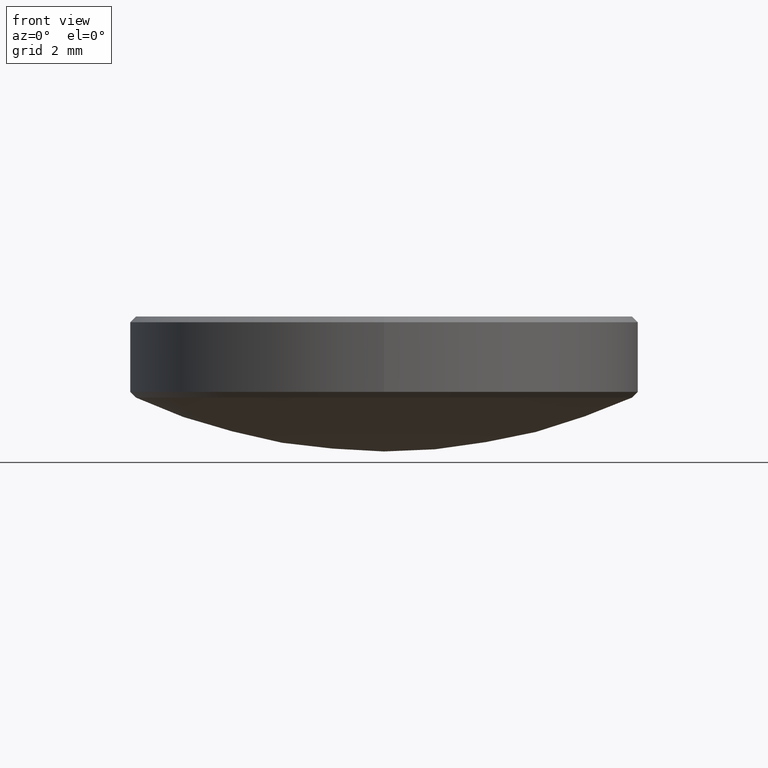
[diagram: clean part render]
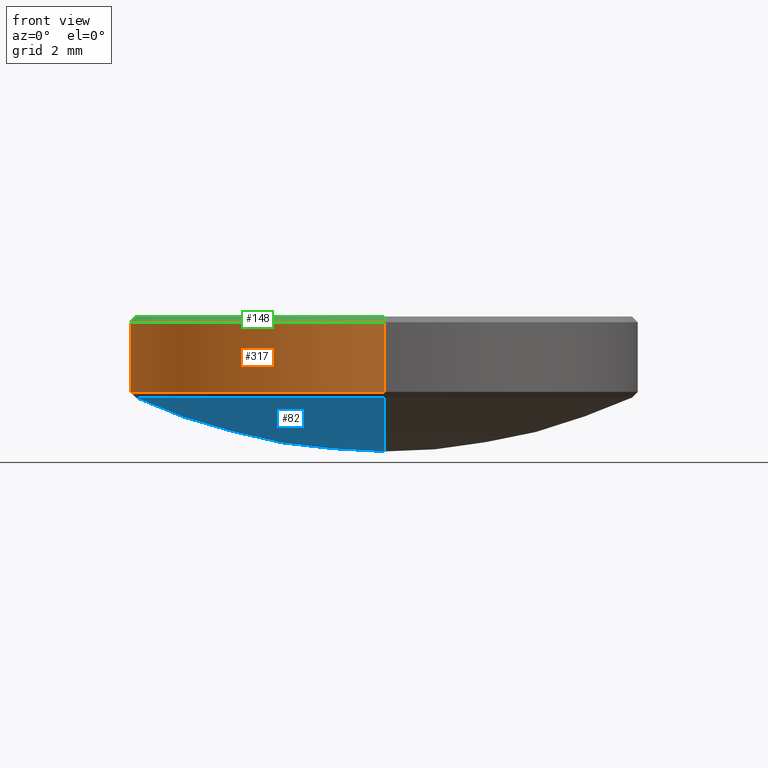
[diagram: same view with three faces highlighted in distinct colors, each labeled with its STEP entity id]
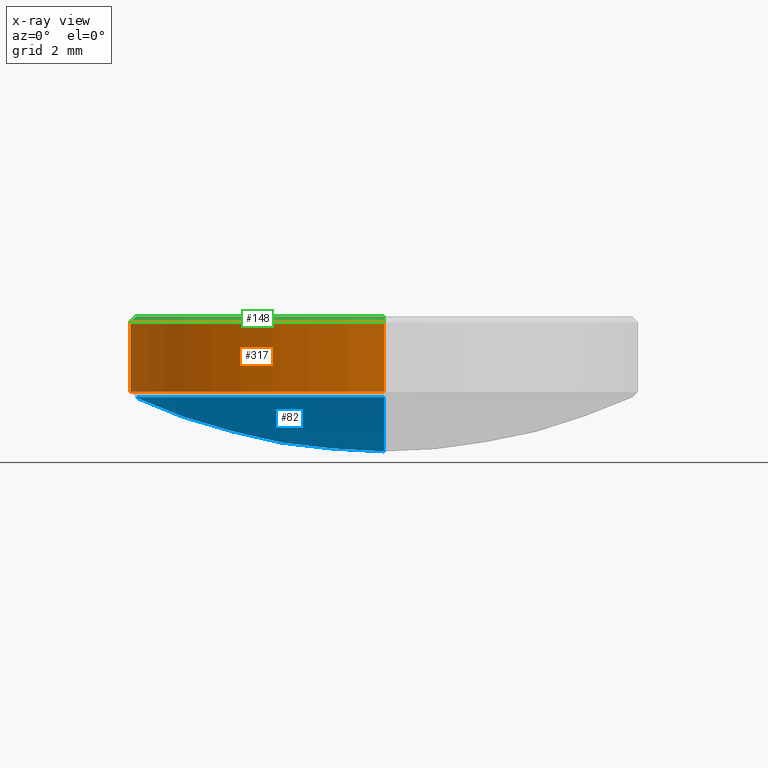
[diagram: x-ray of the same camera — body ghosted, the three highlighted faces saturated]
A machine part, front view with three faces highlighted in distinct colors.
The next image is the same camera in x-ray (body ghosted, the three faces saturated) — at least one of them is partly hidden behind the body in this view.
Their STEP definitions:

[orange] entity #317 — the highlighted cylindrical surface (partial cylindrical patch) has radius 6.35 mm, axis along (-0, -0, 1).
#3 = EDGE_CURVE ( 'NONE', #327, #126, #259, .T. ) ;
#5 = CARTESIAN_POINT ( 'NONE',  ( 0.0000000000000000000, 0.0000000000000000000, 0.05150915296063259000 ) ) ;
#31 = AXIS2_PLACEMENT_3D ( 'NONE', #309, #178, #176 ) ;
#48 = CARTESIAN_POINT ( 'NONE',  ( 3.061616997868383000E-017, 0.2500000000000000000, 0.05150915296063263100 ) ) ;
#60 = DIRECTION ( 'NONE',  ( 0.0000000000000000000, -1.000000000000000000, -1.707404996040164500E-016 ) ) ;
#62 = ORIENTED_EDGE ( 'NONE', *, *, #320, .F. ) ;
#63 = DIRECTION ( 'NONE',  ( -0.0000000000000000000, -1.836909530733566100E-016, 1.000000000000000000 ) ) ;
#87 = VECTOR ( 'NONE', #106, 39.37007874015748100 ) ;
#102 = DIRECTION ( 'NONE',  ( 0.0000000000000000000, -1.000000000000000000, -1.707404996040164500E-016 ) ) ;
#106 = DIRECTION ( 'NONE',  ( -0.0000000000000000000, -1.836909530733566100E-016, 1.000000000000000000 ) ) ;
#123 = EDGE_CURVE ( 'NONE', #327, #325, #152, .T. ) ;
#126 = VERTEX_POINT ( 'NONE', #229 ) ;
#131 = DIRECTION ( 'NONE',  ( -0.0000000000000000000, -1.836909530733566100E-016, 1.000000000000000000 ) ) ;
#133 = CARTESIAN_POINT ( 'NONE',  ( 0.0000000000000000000, -0.2500000000000000000, -0.008072666374097724200 ) ) ;
#145 = LINE ( 'NONE', #199, #87 ) ;
#149 = ORIENTED_EDGE ( 'NONE', *, *, #3, .F. ) ;
#152 = CIRCLE ( 'NONE', #31, 0.2500000000000000000 ) ;
#176 = DIRECTION ( 'NONE',  ( 0.0000000000000000000, -1.000000000000000000, -1.835460370743176800E-016 ) ) ;
#178 = DIRECTION ( 'NONE',  ( -0.0000000000000000000, -1.836909530733566100E-016, 1.000000000000000000 ) ) ;
#188 = CARTESIAN_POINT ( 'NONE',  ( 0.0000000000000000000, -1.626968277904726200E-018, 0.06036624826491248500 ) ) ;
#189 = EDGE_LOOP ( 'NONE', ( #149, #284, #228, #62 ) ) ;
#192 = AXIS2_PLACEMENT_3D ( 'NONE', #188, #272, #60 ) ;
#199 = CARTESIAN_POINT ( 'NONE',  ( 0.0000000000000000000, -0.2500000000000000000, 0.05150915296063254800 ) ) ;
#214 = AXIS2_PLACEMENT_3D ( 'NONE', #5, #131, #102 ) ;
#228 = ORIENTED_EDGE ( 'NONE', *, *, #246, .T. ) ;
#229 = CARTESIAN_POINT ( 'NONE',  ( 3.061616997868383000E-017, 0.2500000000000000000, 0.06036624826491252700 ) ) ;
#240 = CARTESIAN_POINT ( 'NONE',  ( 0.0000000000000000000, -0.2500000000000000000, 0.06036624826491244300 ) ) ;
#246 = EDGE_CURVE ( 'NONE', #325, #270, #145, .T. ) ;
#259 = LINE ( 'NONE', #48, #300 ) ;
#270 = VERTEX_POINT ( 'NONE', #240 ) ;
#272 = DIRECTION ( 'NONE',  ( -0.0000000000000000000, -1.836909530733566100E-016, 1.000000000000000000 ) ) ;
#273 = CIRCLE ( 'NONE', #192, 0.2500000000000000000 ) ;
#284 = ORIENTED_EDGE ( 'NONE', *, *, #123, .T. ) ;
#290 = CYLINDRICAL_SURFACE ( 'NONE', #214, 0.2500000000000000000 ) ;
#298 = CARTESIAN_POINT ( 'NONE',  ( 3.061616997868382400E-017, 0.2500000000000000000, -0.008072666374097632300 ) ) ;
#300 = VECTOR ( 'NONE', #63, 39.37007874015748100 ) ;
#303 = FACE_OUTER_BOUND ( 'NONE', #189, .T. ) ;
#309 = CARTESIAN_POINT ( 'NONE',  ( 0.0000000000000000000, 1.094464117944115000E-017, -0.008072666374097677400 ) ) ;
#317 = ADVANCED_FACE ( 'NONE', ( #303 ), #290, .T. ) ;
#320 = EDGE_CURVE ( 'NONE', #126, #270, #273, .T. ) ;
#325 = VERTEX_POINT ( 'NONE', #133 ) ;
#327 = VERTEX_POINT ( 'NONE', #298 ) ;

[blue] entity #82 — the highlighted spherical surface has radius 15 mm.
#2 = CARTESIAN_POINT ( 'NONE',  ( 0.0000000000000000000, -0.2444322300693973200, -0.01364043630470037100 ) ) ;
#17 = VERTEX_POINT ( 'NONE', #20 ) ;
#20 = CARTESIAN_POINT ( 'NONE',  ( 2.993431481629367800E-017, 0.2444322300693973800, -0.01364043630470025500 ) ) ;
#34 = EDGE_LOOP ( 'NONE', ( #66, #254, #173 ) ) ;
#37 = EDGE_CURVE ( 'NONE', #17, #217, #183, .T. ) ;
#52 = FACE_OUTER_BOUND ( 'NONE', #34, .T. ) ;
#66 = ORIENTED_EDGE ( 'NONE', *, *, #72, .F. ) ;
#72 = EDGE_CURVE ( 'NONE', #208, #17, #155, .T. ) ;
#82 = ADVANCED_FACE ( 'NONE', ( #52 ), #144, .T. ) ;
#90 = DIRECTION ( 'NONE',  ( 1.224646799147353200E-016, 1.000000000000000000, 0.0000000000000000000 ) ) ;
#104 = DIRECTION ( 'NONE',  ( 1.000000000000000000, 0.0000000000000000000, 0.0000000000000000000 ) ) ;
#135 = AXIS2_PLACEMENT_3D ( 'NONE', #262, #288, #256 ) ;
#144 = SPHERICAL_SURFACE ( 'NONE', #330, 0.5905511811023621500 ) ;
#155 = CIRCLE ( 'NONE', #296, 0.5905511811023621500 ) ;
#173 = ORIENTED_EDGE ( 'NONE', *, *, #37, .F. ) ;
#174 = DIRECTION ( 'NONE',  ( 1.000000000000000000, -1.224646799147353200E-016, -2.249565377136128300E-032 ) ) ;
#183 = CIRCLE ( 'NONE', #257, 0.2444322300693973200 ) ;
#208 = VERTEX_POINT ( 'NONE', #310 ) ;
#216 = DIRECTION ( 'NONE',  ( -0.0000000000000000000, -1.836909530733566100E-016, 1.000000000000000000 ) ) ;
#217 = VERTEX_POINT ( 'NONE', #2 ) ;
#254 = ORIENTED_EDGE ( 'NONE', *, *, #283, .T. ) ;
#255 = CARTESIAN_POINT ( 'NONE',  ( 0.0000000000000000000, 0.0000000000000000000, 0.5239500978425223300 ) ) ;
#256 = DIRECTION ( 'NONE',  ( 0.0000000000000000000, 0.0000000000000000000, 1.000000000000000000 ) ) ;
#257 = AXIS2_PLACEMENT_3D ( 'NONE', #324, #216, #264 ) ;
#262 = CARTESIAN_POINT ( 'NONE',  ( 0.0000000000000000000, 0.0000000000000000000, 0.5239500978425223300 ) ) ;
#264 = DIRECTION ( 'NONE',  ( 0.0000000000000000000, -1.000000000000000000, -1.833611759518356000E-016 ) ) ;
#280 = DIRECTION ( 'NONE',  ( 0.0000000000000000000, -1.000000000000000000, -2.312964634635743000E-016 ) ) ;
#283 = EDGE_CURVE ( 'NONE', #208, #217, #313, .T. ) ;
#288 = DIRECTION ( 'NONE',  ( -1.000000000000000000, 0.0000000000000000000, -0.0000000000000000000 ) ) ;
#296 = AXIS2_PLACEMENT_3D ( 'NONE', #318, #174, #90 ) ;
#310 = CARTESIAN_POINT ( 'NONE',  ( 0.0000000000000000000, 7.231807861180451000E-017, -0.06660108325983987700 ) ) ;
#313 = CIRCLE ( 'NONE', #135, 0.5905511811023621500 ) ;
#318 = CARTESIAN_POINT ( 'NONE',  ( 0.0000000000000000000, 0.0000000000000000000, 0.5239500978425223300 ) ) ;
#324 = CARTESIAN_POINT ( 'NONE',  ( 0.0000000000000000000, 1.196739014448673000E-017, -0.01364043630470035400 ) ) ;
#330 = AXIS2_PLACEMENT_3D ( 'NONE', #255, #104, #280 ) ;

[green] entity #148 — the highlighted conical surface has half-angle 45 deg.
#11 = CARTESIAN_POINT ( 'NONE',  ( 3.061616997868383000E-017, -0.2500000000000000000, 0.06036624826491244300 ) ) ;
#13 = DIRECTION ( 'NONE',  ( 8.659560562354985900E-017, -0.7071067811865516800, -0.7071067811865431300 ) ) ;
#38 = CARTESIAN_POINT ( 'NONE',  ( 0.0000000000000000000, 0.2500000000000000000, 0.06036624826491252700 ) ) ;
#47 = AXIS2_PLACEMENT_3D ( 'NONE', #305, #168, #221 ) ;
#53 = EDGE_CURVE ( 'NONE', #212, #71, #306, .T. ) ;
#60 = DIRECTION ( 'NONE',  ( 0.0000000000000000000, -1.000000000000000000, -1.707404996040164500E-016 ) ) ;
#68 = ORIENTED_EDGE ( 'NONE', *, *, #120, .F. ) ;
#71 = VERTEX_POINT ( 'NONE', #117 ) ;
#114 = ORIENTED_EDGE ( 'NONE', *, *, #265, .T. ) ;
#117 = CARTESIAN_POINT ( 'NONE',  ( -2.993431481629359100E-017, -0.2444322300693961800, 0.06593401819551519800 ) ) ;
#118 = CONICAL_SURFACE ( 'NONE', #47, 0.2500000000000000000, 0.7853981633974545000 ) ;
#120 = EDGE_CURVE ( 'NONE', #71, #270, #134, .T. ) ;
#122 = LINE ( 'NONE', #38, #218 ) ;
#125 = ORIENTED_EDGE ( 'NONE', *, *, #320, .T. ) ;
#126 = VERTEX_POINT ( 'NONE', #229 ) ;
#129 = VECTOR ( 'NONE', #13, 39.37007874015748900 ) ;
#130 = EDGE_LOOP ( 'NONE', ( #68, #186, #114, #125 ) ) ;
#134 = LINE ( 'NONE', #11, #129 ) ;
#137 = DIRECTION ( 'NONE',  ( 0.0000000000000000000, -1.000000000000000000, -1.746296913827006200E-016 ) ) ;
#140 = FACE_OUTER_BOUND ( 'NONE', #130, .T. ) ;
#148 = ADVANCED_FACE ( 'NONE', ( #140 ), #118, .T. ) ;
#164 = DIRECTION ( 'NONE',  ( 0.0000000000000000000, 0.7071067811865520100, -0.7071067811865430200 ) ) ;
#168 = DIRECTION ( 'NONE',  ( 0.0000000000000000000, 1.836909530733566100E-016, -1.000000000000000000 ) ) ;
#186 = ORIENTED_EDGE ( 'NONE', *, *, #53, .F. ) ;
#188 = CARTESIAN_POINT ( 'NONE',  ( 0.0000000000000000000, -1.626968277904726200E-018, 0.06036624826491248500 ) ) ;
#192 = AXIS2_PLACEMENT_3D ( 'NONE', #188, #272, #60 ) ;
#201 = CARTESIAN_POINT ( 'NONE',  ( 0.0000000000000000000, 0.2444322300693965700, 0.06593401819551524000 ) ) ;
#212 = VERTEX_POINT ( 'NONE', #201 ) ;
#218 = VECTOR ( 'NONE', #164, 39.37007874015748100 ) ;
#221 = DIRECTION ( 'NONE',  ( 0.0000000000000000000, 1.000000000000000000, 1.707404996040164500E-016 ) ) ;
#223 = AXIS2_PLACEMENT_3D ( 'NONE', #314, #274, #137 ) ;
#229 = CARTESIAN_POINT ( 'NONE',  ( 3.061616997868383000E-017, 0.2500000000000000000, 0.06036624826491252700 ) ) ;
#240 = CARTESIAN_POINT ( 'NONE',  ( 0.0000000000000000000, -0.2500000000000000000, 0.06036624826491244300 ) ) ;
#265 = EDGE_CURVE ( 'NONE', #212, #126, #122, .T. ) ;
#270 = VERTEX_POINT ( 'NONE', #240 ) ;
#272 = DIRECTION ( 'NONE',  ( -0.0000000000000000000, -1.836909530733566100E-016, 1.000000000000000000 ) ) ;
#273 = CIRCLE ( 'NONE', #192, 0.2500000000000000000 ) ;
#274 = DIRECTION ( 'NONE',  ( -0.0000000000000000000, -1.836909530733566100E-016, 1.000000000000000000 ) ) ;
#305 = CARTESIAN_POINT ( 'NONE',  ( 0.0000000000000000000, -1.626968277904726200E-018, 0.06036624826491248500 ) ) ;
#306 = CIRCLE ( 'NONE', #223, 0.2444322300693972100 ) ;
#314 = CARTESIAN_POINT ( 'NONE',  ( 0.0000000000000000000, -2.649717242950314800E-018, 0.06593401819551519800 ) ) ;
#320 = EDGE_CURVE ( 'NONE', #126, #270, #273, .T. ) ;